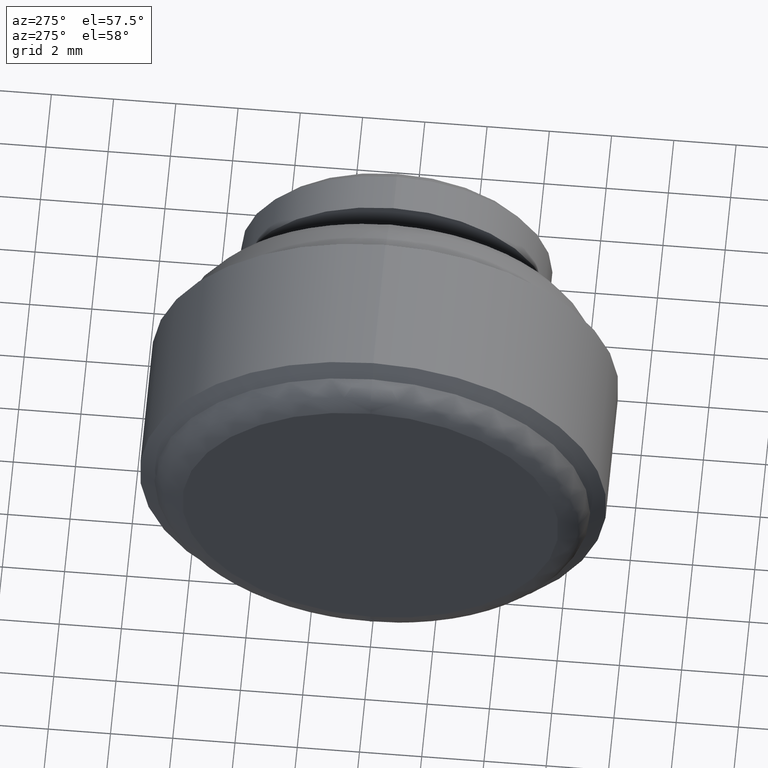
[diagram: clean part render]
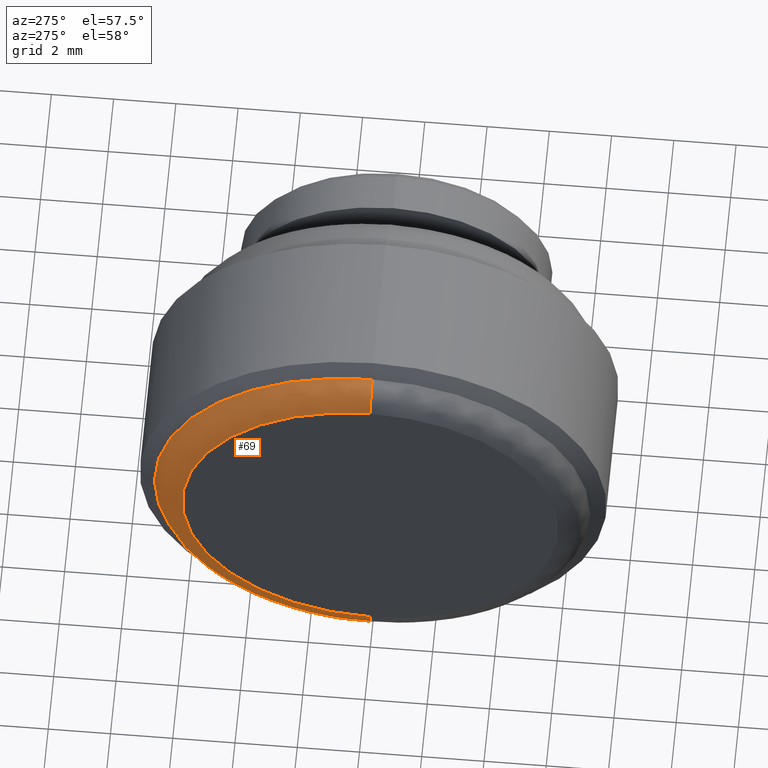
[diagram: same view with one face highlighted and labeled with its STEP entity id]
A machine part, auxiliary view. The second image highlights one B-rep face of the part: STEP entity #69.
In plain terms, the highlighted face is a freeform B-spline surface patch.
Its self-contained STEP definition (entity closure, byte-faithful):
#69=ADVANCED_FACE('',(#364),#363,.T.);
#363=( BOUNDED_SURFACE() B_SPLINE_SURFACE( 2,2,((#656,#657,#658,#659,#660),(#661,#662,#663,#664,#665),(#666,#667,#668,#669,#670),(#671,#672,#673,#674,#675),(#676,#677,#678,#679,#680)), .UNSPECIFIED.,.F.,.F.,.F.) B_SPLINE_SURFACE_WITH_KNOTS((3,2,3),(3,2,3),(0.00000000000E+00,5.00000000000E-01,1.00000000000E+00),(0.00000000000E+00,5.00000000000E-01,1.00000000000E+00), .UNSPECIFIED. ) GEOMETRIC_REPRESENTATION_ITEM() RATIONAL_B_SPLINE_SURFACE(((1.00000000000E+00,8.06216785087E-01,1.00000000000E+00,8.06216785087E-01,1.00000000000E+00),(7.07106781187E-01,5.70081355842E-01,7.07106781187E-01,5.70081355842E-01,7.07106781187E-01),(1.00000000000E+00,8.06216785087E-01,1.00000000000E+00,8.06216785087E-01,1.00000000000E+00),(7.07106781187E-01,5.70081355842E-01,7.07106781187E-01,5.70081355842E-01,7.07106781187E-01),(1.00000000000E+00,8.06216785087E-01,1.00000000000E+00,8.06216785087E-01,1.00000000000E+00))) REPRESENTATION_ITEM('') SURFACE() );
#364=FACE_OUTER_BOUND('',#681,.T.);
#656=CARTESIAN_POINT('',(-9.29997100911E+00,-2.83119229075E-20,7.00004831814E+00));
#657=CARTESIAN_POINT('',(-1.00000000000E+01,-2.74216179474E-20,6.77992276332E+00));
#658=CARTESIAN_POINT('',(-1.00000000000E+01,-2.44536479337E-20,6.04610000000E+00));
#659=CARTESIAN_POINT('',(-1.00000000000E+01,-2.14856779200E-20,5.31227723668E+00));
#660=CARTESIAN_POINT('',(-9.29997100911E+00,-2.05953729599E-20,5.09215168185E+00));
#661=CARTESIAN_POINT('',(-9.29997100911E+00,7.00004831814E+00,7.00004831814E+00));
#662=CARTESIAN_POINT('',(-1.00000000000E+01,6.77992276332E+00,6.77992276332E+00));
#663=CARTESIAN_POINT('',(-1.00000000000E+01,6.04610000000E+00,6.04610000000E+00));
#664=CARTESIAN_POINT('',(-1.00000000000E+01,5.31227723668E+00,5.31227723668E+00));
#665=CARTESIAN_POINT('',(-9.29997100911E+00,5.09215168185E+00,5.09215168185E+00));
#666=CARTESIAN_POINT('',(-9.29997100911E+00,7.00004831814E+00,4.28657650258E-16));
#667=CARTESIAN_POINT('',(-1.00000000000E+01,6.77992276332E+00,4.15177957146E-16));
#668=CARTESIAN_POINT('',(-1.00000000000E+01,6.04610000000E+00,3.70241304264E-16));
#669=CARTESIAN_POINT('',(-1.00000000000E+01,5.31227723668E+00,3.25304651382E-16));
#670=CARTESIAN_POINT('',(-9.29997100911E+00,5.09215168185E+00,3.11824958271E-16));
#671=CARTESIAN_POINT('',(-9.29997100911E+00,7.00004831814E+00,-7.00004831814E+00));
#672=CARTESIAN_POINT('',(-1.00000000000E+01,6.77992276332E+00,-6.77992276332E+00));
#673=CARTESIAN_POINT('',(-1.00000000000E+01,6.04610000000E+00,-6.04610000000E+00));
#674=CARTESIAN_POINT('',(-1.00000000000E+01,5.31227723668E+00,-5.31227723668E+00));
#675=CARTESIAN_POINT('',(-9.29997100911E+00,5.09215168185E+00,-5.09215168185E+00));
#676=CARTESIAN_POINT('',(-9.29997100911E+00,8.57286988592E-16,-7.00004831814E+00));
#677=CARTESIAN_POINT('',(-1.00000000000E+01,8.30328492675E-16,-6.77992276332E+00));
#678=CARTESIAN_POINT('',(-1.00000000000E+01,7.40458154880E-16,-6.04610000000E+00));
#679=CARTESIAN_POINT('',(-1.00000000000E+01,6.50587817086E-16,-5.31227723668E+00));
#680=CARTESIAN_POINT('',(-9.29997100911E+00,6.23629321169E-16,-5.09215168185E+00));
#681=EDGE_LOOP('',(#794,#795,#796,#797));
#794=ORIENTED_EDGE('',*,*,#853,.T.);
#795=ORIENTED_EDGE('',*,*,#854,.T.);
#796=ORIENTED_EDGE('',*,*,#798,.F.);
#797=ORIENTED_EDGE('',*,*,#855,.F.);
#798=EDGE_CURVE('',#856,#857,#858,.T.);
#853=EDGE_CURVE('',#1199,#1206,#1219,.T.);
#854=EDGE_CURVE('',#1206,#857,#1225,.T.);
#855=EDGE_CURVE('',#1199,#856,#1231,.T.);
#856=VERTEX_POINT('',#1237);
#857=VERTEX_POINT('',#1238);
#858=CIRCLE('',#1242,6.04610000000E+00);
#1199=VERTEX_POINT('',#1436);
#1206=VERTEX_POINT('',#1439);
#1219=CIRCLE('',#1449,7.00004831814E+00);
#1225=(BOUNDED_CURVE() B_SPLINE_CURVE(2,(#1450,#1451,#1452),.UNSPECIFIED.,.F.,.F.) B_SPLINE_CURVE_WITH_KNOTS((3,3),(0.00000000000E+00,5.00000000000E-01),.UNSPECIFIED.) CURVE() GEOMETRIC_REPRESENTATION_ITEM() RATIONAL_B_SPLINE_CURVE((1.00000000000E+00,8.06216785087E-01,1.00000000000E+00)) REPRESENTATION_ITEM('') );
#1231=(BOUNDED_CURVE() B_SPLINE_CURVE(3,(#1453,#1454,#1455,#1456),.UNSPECIFIED.,.F.,.F.) B_SPLINE_CURVE_WITH_KNOTS((4,4),(0.00000000000E+00,5.00000001537E-01),.UNSPECIFIED.) CURVE() GEOMETRIC_REPRESENTATION_ITEM() RATIONAL_B_SPLINE_CURVE((1.00000000000E+00,1.00000000000E+00,1.00000000000E+00,1.00000000000E+00)) REPRESENTATION_ITEM('') );
#1237=CARTESIAN_POINT('',(-1.00000000000E+01,0.00000000000E+00,6.04610000000E+00));
#1238=CARTESIAN_POINT('',(-1.00000000000E+01,-2.96059473233E-16,-6.04610000000E+00));
#1239=CARTESIAN_POINT('',(-1.00000000000E+01,0.00000000000E+00,0.00000000000E+00));
#1240=DIRECTION('',(-1.00000000000E+00,0.00000000000E+00,0.00000000000E+00));
#1241=DIRECTION('',(0.00000000000E+00,-1.22460635382E-16,1.00000000000E+00));
#1242=AXIS2_PLACEMENT_3D('',#1239,#1240,#1241);
#1436=CARTESIAN_POINT('',(-9.29997100911E+00,0.00000000000E+00,7.00004831814E+00));
#1439=CARTESIAN_POINT('',(-9.29997100911E+00,2.96059473233E-16,-7.00004831814E+00));
#1446=CARTESIAN_POINT('',(-9.29997100911E+00,0.00000000000E+00,0.00000000000E+00));
#1447=DIRECTION('',(-1.00000000000E+00,0.00000000000E+00,0.00000000000E+00));
#1448=DIRECTION('',(0.00000000000E+00,-1.22460635382E-16,1.00000000000E+00));
#1449=AXIS2_PLACEMENT_3D('',#1446,#1447,#1448);
#1450=CARTESIAN_POINT('',(-9.29997100911E+00,-8.57230364746E-16,-7.00004831814E+00));
#1451=CARTESIAN_POINT('',(-1.00000000000E+01,-8.30273649439E-16,-6.77992276332E+00));
#1452=CARTESIAN_POINT('',(-1.00000000000E+01,-7.40409247585E-16,-6.04610000000E+00));
#1453=CARTESIAN_POINT('',(-9.29997100911E+00,5.92118946467E-16,7.00004831814E+00));
#1454=CARTESIAN_POINT('',(-9.74162238157E+00,6.87408765510E-16,6.83492697133E+00));
#1455=CARTESIAN_POINT('',(-9.97496537853E+00,7.86095256637E-16,6.51694419740E+00));
#1456=CARTESIAN_POINT('',(-1.00000000000E+01,8.88178419848E-16,6.04609999636E+00));